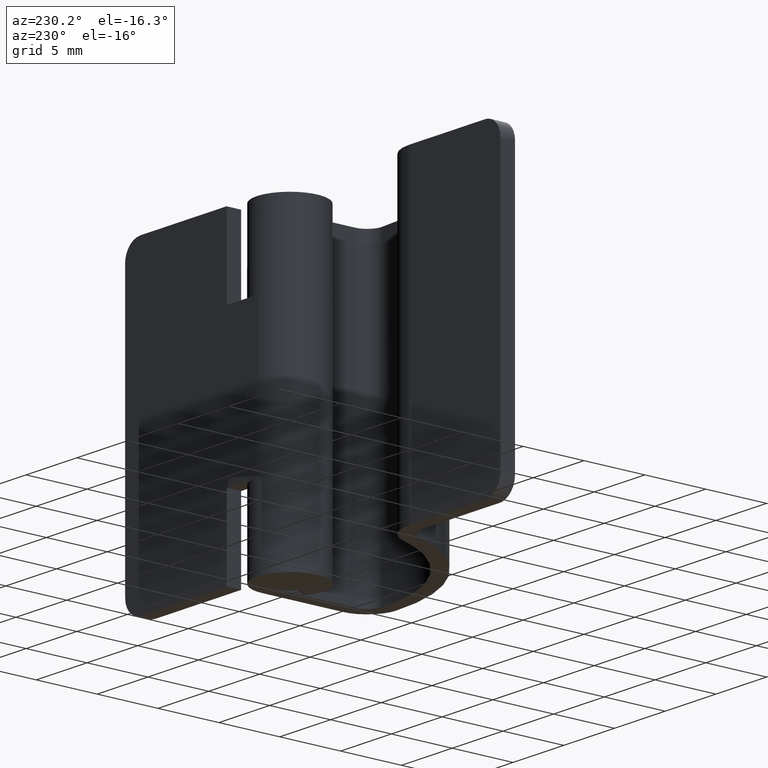
[diagram: clean part render]
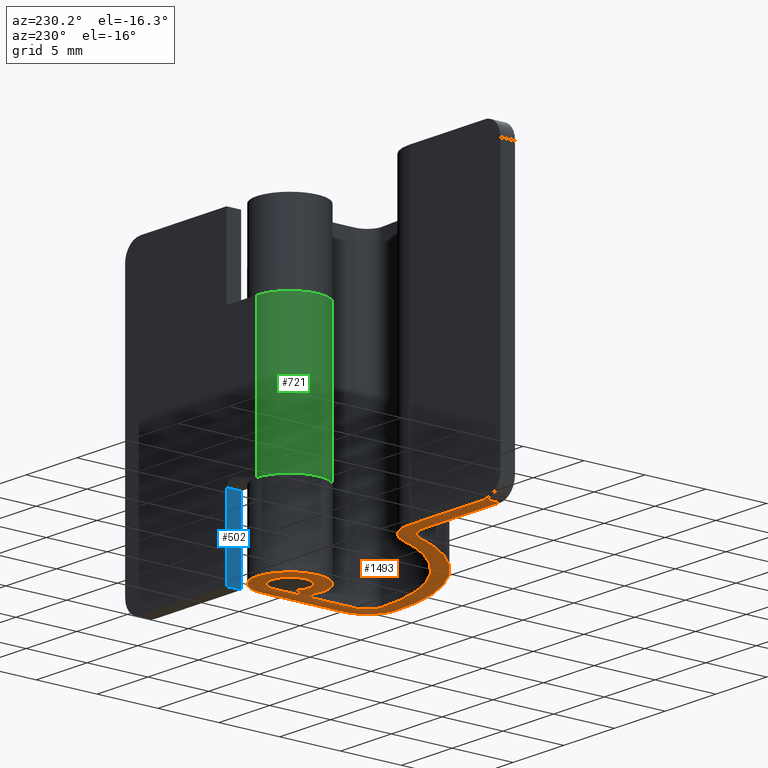
[diagram: same view with three faces highlighted in distinct colors, each labeled with its STEP entity id]
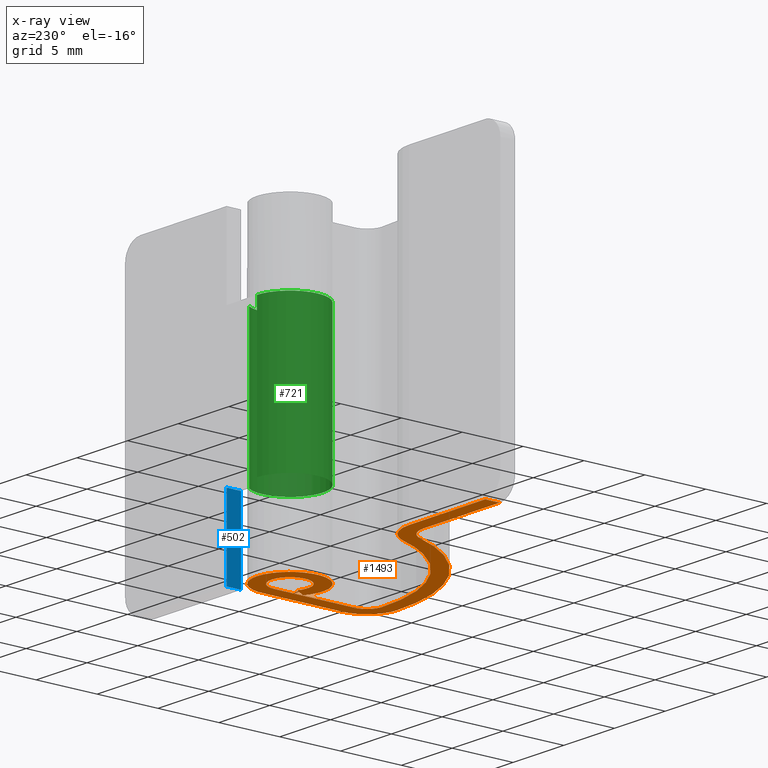
[diagram: x-ray of the same camera — body ghosted, the three highlighted faces saturated]
A machine part, auxiliary view with three faces highlighted in distinct colors.
The next image is the same camera in x-ray (body ghosted, the three faces saturated) — at least one of them is partly hidden behind the body in this view.
Their STEP definitions:

[orange] entity #1493 — the highlighted face is a freeform B-spline surface patch.
#1099=CARTESIAN_POINT('',(-22.500000000000000,2.700001000000000,0.0));
#1100=VERTEX_POINT('',#1099);
#1116=CARTESIAN_POINT('',(-22.500000000000000,1.500000000000000,0.0));
#1117=VERTEX_POINT('',#1116);
#1118=CARTESIAN_POINT('',(-22.500000000000000,1.500000000000000,0.0));
#1119=CARTESIAN_POINT('',(-22.500000000000000,2.700001000000000,0.0));
#1120=QUASI_UNIFORM_CURVE('',1,(#1118,#1119),.UNSPECIFIED.,.F.,.U.);
#1121=EDGE_CURVE('',#1117,#1100,#1120,.T.);
#1320=CARTESIAN_POINT('',(-23.758739801307520,-9.584245855165301,0.0));
#1321=CARTESIAN_POINT('',(3.958737477224223,-9.584245855165301,0.0));
#1322=CARTESIAN_POINT('',(-23.758739801307520,3.284408292945508,0.0));
#1323=CARTESIAN_POINT('',(3.958737477224223,3.284408292945508,0.0));
#1324=B_SPLINE_SURFACE_WITH_KNOTS('',1,1,((#1320,#1322),(#1321,#1323)),.UNSPECIFIED.,.F.,.F.,.U.,(2,2),(2,2),(0.0,27.717477278531739),(0.0,12.868654148110810),.UNSPECIFIED.);
#1325=CARTESIAN_POINT('',(-15.000003389367050,1.500000000000000,0.0));
#1326=VERTEX_POINT('',#1325);
#1327=CARTESIAN_POINT('',(-22.500000000000000,1.500000000000000,0.0));
#1328=CARTESIAN_POINT('',(-15.000003389367050,1.500000000000000,0.0));
#1329=QUASI_UNIFORM_CURVE('',1,(#1327,#1328),.UNSPECIFIED.,.F.,.U.);
#1330=EDGE_CURVE('',#1117,#1326,#1329,.T.);
#1331=ORIENTED_EDGE('',*,*,#1330,.F.);
#1332=ORIENTED_EDGE('',*,*,#1121,.T.);
#1333=CARTESIAN_POINT('',(-15.000003765196301,2.700001000000000,0.0));
#1334=VERTEX_POINT('',#1333);
#1335=CARTESIAN_POINT('',(-15.000003765196301,2.700001000000000,0.0));
#1336=CARTESIAN_POINT('',(-22.500000000000000,2.700001000000000,0.0));
#1337=QUASI_UNIFORM_CURVE('',1,(#1335,#1336),.UNSPECIFIED.,.F.,.U.);
#1338=EDGE_CURVE('',#1334,#1100,#1337,.T.);
#1339=ORIENTED_EDGE('',*,*,#1338,.F.);
#1340=CARTESIAN_POINT('',(-12.004567762194521,0.625773246913583,0.0));
#1341=VERTEX_POINT('',#1340);
#1342=CARTESIAN_POINT('',(-15.000003765196301,2.700001000000000,0.0));
#1343=CARTESIAN_POINT('',(-12.784123070958465,2.700000999999999,0.0));
#1344=CARTESIAN_POINT('',(-12.004567762194540,0.625773246913576,0.0));
#1352=(BOUNDED_CURVE()B_SPLINE_CURVE(2,(#1342,#1343,#1344),.UNSPECIFIED.,.F.,.U.)CURVE()GEOMETRIC_REPRESENTATION_ITEM()QUASI_UNIFORM_CURVE()RATIONAL_B_SPLINE_CURVE((1.0,0.822132540154108,1.0))REPRESENTATION_ITEM(''));
#1353=EDGE_CURVE('',#1334,#1341,#1352,.T.);
#1354=ORIENTED_EDGE('',*,*,#1353,.T.);
#1355=CARTESIAN_POINT('',(0.313790745762814,-7.799918499190090,0.0));
#1356=VERTEX_POINT('',#1355);
#1357=CARTESIAN_POINT('',(0.313790745762814,-7.799918499190093,0.0));
#1358=CARTESIAN_POINT('',(-8.798586762132912,-7.904647483258636,0.0));
#1359=CARTESIAN_POINT('',(-12.004567762194529,0.625773246913579,0.0));
#1367=(BOUNDED_CURVE()B_SPLINE_CURVE(2,(#1357,#1358,#1359),.UNSPECIFIED.,.F.,.U.)CURVE()GEOMETRIC_REPRESENTATION_ITEM()QUASI_UNIFORM_CURVE()RATIONAL_B_SPLINE_CURVE((1.0,0.818847655334349,1.0))REPRESENTATION_ITEM(''));
#1368=EDGE_CURVE('',#1356,#1341,#1367,.T.);
#1369=ORIENTED_EDGE('',*,*,#1368,.F.);
#1370=CARTESIAN_POINT('',(1.500000000000100,-6.599998000000000,0.0));
#1371=VERTEX_POINT('',#1370);
#1372=CARTESIAN_POINT('',(1.500000000000100,-6.599998000000000,0.0));
#1373=CARTESIAN_POINT('',(1.499999748327927,-7.786285343230083,0.0));
#1374=CARTESIAN_POINT('',(0.313790745762814,-7.799918499190094,0.0));
#1382=(BOUNDED_CURVE()B_SPLINE_CURVE(2,(#1372,#1373,#1374),.UNSPECIFIED.,.F.,.U.)CURVE()GEOMETRIC_REPRESENTATION_ITEM()QUASI_UNIFORM_CURVE()RATIONAL_B_SPLINE_CURVE((1.0,0.711158386111234,1.0))REPRESENTATION_ITEM(''));
#1383=EDGE_CURVE('',#1371,#1356,#1382,.T.);
#1384=ORIENTED_EDGE('',*,*,#1383,.F.);
#1385=CARTESIAN_POINT('',(1.500000000000000,3.673819E-016,0.0));
#1386=VERTEX_POINT('',#1385);
#1387=CARTESIAN_POINT('',(1.500000000000000,3.673819E-016,0.0));
#1388=CARTESIAN_POINT('',(1.500000000000100,-6.599998000000000,0.0));
#1389=QUASI_UNIFORM_CURVE('',1,(#1387,#1388),.UNSPECIFIED.,.F.,.U.);
#1390=EDGE_CURVE('',#1386,#1371,#1389,.T.);
#1391=ORIENTED_EDGE('',*,*,#1390,.F.);
#1392=CARTESIAN_POINT('',(0.805555555555611,-1.265337997103340,0.0));
#1393=VERTEX_POINT('',#1392);
#1394=CARTESIAN_POINT('',(0.805555555555611,-1.265337997103339,0.0));
#1395=CARTESIAN_POINT('',(-0.176304541715746,-1.890422249647697,0.0));
#1396=CARTESIAN_POINT('',(-1.025644030195455,-1.094556678899921,0.0));
#1397=CARTESIAN_POINT('',(-1.874983518675165,-0.298691108152145,0.0));
#1398=CARTESIAN_POINT('',(-1.314977819838308,0.721687836487003,0.0));
#1399=CARTESIAN_POINT('',(-0.754972121001450,1.742066781126151,0.0));
#1400=CARTESIAN_POINT('',(0.372513939499275,1.453008384311230,0.0));
#1401=CARTESIAN_POINT('',(1.500000000000001,1.163949987496309,0.0));
#1402=CARTESIAN_POINT('',(1.500000000000000,0.0,0.0));
#1410=(BOUNDED_CURVE()B_SPLINE_CURVE(2,(#1394,#1395,#1396,#1397,#1398,#1399,#1400,#1401,#1402),.UNSPECIFIED.,.F.,.U.)B_SPLINE_CURVE_WITH_KNOTS((3,2,2,2,3),(0.0,0.250000000000000,0.500000000000000,0.750000000000000,1.0),.UNSPECIFIED.)CURVE()GEOMETRIC_REPRESENTATION_ITEM()RATIONAL_B_SPLINE_CURVE((1.0,0.790045133626190,1.0,0.790045133626190,1.0,0.790045133626190,1.0,0.790045133626190,1.0))REPRESENTATION_ITEM(''));
#1411=EDGE_CURVE('',#1393,#1386,#1410,.T.);
#1412=ORIENTED_EDGE('',*,*,#1411,.F.);
#1413=CARTESIAN_POINT('',(1.450000000000098,-2.277608394786015,0.0));
#1414=VERTEX_POINT('',#1413);
#1415=CARTESIAN_POINT('',(1.450000000000098,-2.277608394786015,0.0));
#1416=CARTESIAN_POINT('',(0.805555555555611,-1.265337997103340,0.0));
#1417=QUASI_UNIFORM_CURVE('',1,(#1415,#1416),.UNSPECIFIED.,.F.,.U.);
#1418=EDGE_CURVE('',#1414,#1393,#1417,.T.);
#1419=ORIENTED_EDGE('',*,*,#1418,.F.);
#1420=CARTESIAN_POINT('',(2.699997000000110,0.004024921167900,0.0));
#1421=VERTEX_POINT('',#1420);
#1422=CARTESIAN_POINT('',(1.450000000000096,-2.277608394786014,0.0));
#1423=CARTESIAN_POINT('',(-0.316668320156679,-3.402327231479697,0.0));
#1424=CARTESIAN_POINT('',(-1.845424875166958,-1.970889908167125,0.0));
#1425=CARTESIAN_POINT('',(-3.374181430177236,-0.539452584854552,0.0));
#1426=CARTESIAN_POINT('',(-2.367927664038830,1.297273516988461,0.0));
#1427=CARTESIAN_POINT('',(-1.361673897900424,3.133999618831474,0.0));
#1428=CARTESIAN_POINT('',(0.667600549445105,2.616163126867397,0.0));
#1429=CARTESIAN_POINT('',(2.696874996790632,2.098326634903320,0.0));
#1430=CARTESIAN_POINT('',(2.699997000000110,0.004024921167900,0.0));
#1438=(BOUNDED_CURVE()B_SPLINE_CURVE(2,(#1422,#1423,#1424,#1425,#1426,#1427,#1428,#1429,#1430),.UNSPECIFIED.,.F.,.U.)B_SPLINE_CURVE_WITH_KNOTS((3,2,2,2,3),(0.0,0.250000000000000,0.500000000000000,0.750000000000000,1.0),.UNSPECIFIED.)CURVE()GEOMETRIC_REPRESENTATION_ITEM()RATIONAL_B_SPLINE_CURVE((1.0,0.790159354795212,1.0,0.790159354795212,1.0,0.790159354795212,1.0,0.790159354795212,1.0))REPRESENTATION_ITEM(''));
#1439=EDGE_CURVE('',#1414,#1421,#1438,.T.);
#1440=ORIENTED_EDGE('',*,*,#1439,.T.);
#1441=CARTESIAN_POINT('',(2.699997000000110,-6.599997779897450,0.0));
#1442=VERTEX_POINT('',#1441);
#1443=CARTESIAN_POINT('',(2.699997000000110,-6.599997779897450,0.0));
#1444=CARTESIAN_POINT('',(2.699997000000110,0.004024921167900,0.0));
#1445=QUASI_UNIFORM_CURVE('',1,(#1443,#1444),.UNSPECIFIED.,.F.,.U.);
#1446=EDGE_CURVE('',#1442,#1421,#1445,.T.);
#1447=ORIENTED_EDGE('',*,*,#1446,.F.);
#1448=CARTESIAN_POINT('',(0.327577881356044,-8.999839294452860,0.0));
#1449=VERTEX_POINT('',#1448);
#1450=CARTESIAN_POINT('',(2.699997000000110,-6.599997779897450,0.0));
#1451=CARTESIAN_POINT('',(2.699997000000110,-8.972573573012092,0.0));
#1452=CARTESIAN_POINT('',(0.327577881356045,-8.999839294452865,0.0));
#1460=(BOUNDED_CURVE()B_SPLINE_CURVE(2,(#1450,#1451,#1452),.UNSPECIFIED.,.F.,.U.)CURVE()GEOMETRIC_REPRESENTATION_ITEM()QUASI_UNIFORM_CURVE()RATIONAL_B_SPLINE_CURVE((1.0,0.711158222162377,1.0))REPRESENTATION_ITEM(''));
#1461=EDGE_CURVE('',#1442,#1449,#1460,.T.);
#1462=ORIENTED_EDGE('',*,*,#1461,.T.);
#1463=CARTESIAN_POINT('',(-13.127855933889640,0.203607777777776,0.0));
#1464=VERTEX_POINT('',#1463);
#1465=CARTESIAN_POINT('',(0.327577881356048,-8.999839294452874,0.0));
#1466=CARTESIAN_POINT('',(-9.625938804484882,-9.114232999671085,0.0));
#1467=CARTESIAN_POINT('',(-13.127855933889650,0.203607777777775,0.0));
#1475=(BOUNDED_CURVE()B_SPLINE_CURVE(2,(#1465,#1466,#1467),.UNSPECIFIED.,.F.,.U.)CURVE()GEOMETRIC_REPRESENTATION_ITEM()QUASI_UNIFORM_CURVE()RATIONAL_B_SPLINE_CURVE((1.0,0.818847747232917,1.0))REPRESENTATION_ITEM(''));
#1476=EDGE_CURVE('',#1449,#1464,#1475,.T.);
#1477=ORIENTED_EDGE('',*,*,#1476,.T.);
#1478=CARTESIAN_POINT('',(-15.000003389367050,1.500000000000000,0.0));
#1479=CARTESIAN_POINT('',(-13.615078053032773,1.500000000000000,0.0));
#1480=CARTESIAN_POINT('',(-13.127855933889620,0.203607777777783,0.0));
#1488=(BOUNDED_CURVE()B_SPLINE_CURVE(2,(#1478,#1479,#1480),.UNSPECIFIED.,.F.,.U.)CURVE()GEOMETRIC_REPRESENTATION_ITEM()QUASI_UNIFORM_CURVE()RATIONAL_B_SPLINE_CURVE((1.0,0.822132558924925,1.0))REPRESENTATION_ITEM(''));
#1489=EDGE_CURVE('',#1326,#1464,#1488,.T.);
#1490=ORIENTED_EDGE('',*,*,#1489,.F.);
#1491=EDGE_LOOP('',(#1331,#1332,#1339,#1354,#1369,#1384,#1391,#1412,#1419,#1440,#1447,#1462,#1477,#1490));
#1492=FACE_OUTER_BOUND('',#1491,.T.);
#1493=ADVANCED_FACE('',(#1492),#1324,.F.);

[blue] entity #502 — the highlighted face is a freeform B-spline surface patch.
#425=CARTESIAN_POINT('',(3.0,2.700001000000000,6.500000000000000));
#426=VERTEX_POINT('',#425);
#432=CARTESIAN_POINT('',(3.0,1.500000000000000,6.500000000000000));
#433=VERTEX_POINT('',#432);
#434=CARTESIAN_POINT('',(3.0,2.700001000000000,6.500000000000000));
#435=CARTESIAN_POINT('',(3.0,1.500000000000000,6.500000000000000));
#436=QUASI_UNIFORM_CURVE('',1,(#434,#435),.UNSPECIFIED.,.F.,.U.);
#437=EDGE_CURVE('',#426,#433,#436,.T.);
#475=CARTESIAN_POINT('',(3.0,1.440059952375834,-0.324674987401739));
#476=CARTESIAN_POINT('',(3.0,1.440059952375834,6.824675161745327));
#477=CARTESIAN_POINT('',(3.0,2.759941079810700,-0.324674987401739));
#478=CARTESIAN_POINT('',(3.0,2.759941079810700,6.824675161745327));
#479=B_SPLINE_SURFACE_WITH_KNOTS('',1,1,((#475,#477),(#476,#478)),.UNSPECIFIED.,.F.,.F.,.U.,(2,2),(2,2),(0.0,7.149350149147066),(0.041708334948495,0.958291687403247),.UNSPECIFIED.);
#480=ORIENTED_EDGE('',*,*,#437,.F.);
#481=CARTESIAN_POINT('',(3.0,2.700001000000000,0.0));
#482=VERTEX_POINT('',#481);
#483=CARTESIAN_POINT('',(3.0,2.700001000000000,0.0));
#484=CARTESIAN_POINT('',(3.0,2.700001000000000,6.500000000000000));
#485=QUASI_UNIFORM_CURVE('',1,(#483,#484),.UNSPECIFIED.,.F.,.U.);
#486=EDGE_CURVE('',#482,#426,#485,.T.);
#487=ORIENTED_EDGE('',*,*,#486,.F.);
#488=CARTESIAN_POINT('',(3.0,1.500000000000000,0.0));
#489=VERTEX_POINT('',#488);
#490=CARTESIAN_POINT('',(3.0,2.700001000000000,0.0));
#491=CARTESIAN_POINT('',(3.0,1.500000000000000,0.0));
#492=QUASI_UNIFORM_CURVE('',1,(#490,#491),.UNSPECIFIED.,.F.,.U.);
#493=EDGE_CURVE('',#482,#489,#492,.T.);
#494=ORIENTED_EDGE('',*,*,#493,.T.);
#495=CARTESIAN_POINT('',(3.0,1.500000000000000,0.0));
#496=CARTESIAN_POINT('',(3.0,1.500000000000000,6.500000000000000));
#497=QUASI_UNIFORM_CURVE('',1,(#495,#496),.UNSPECIFIED.,.F.,.U.);
#498=EDGE_CURVE('',#489,#433,#497,.T.);
#499=ORIENTED_EDGE('',*,*,#498,.T.);
#500=EDGE_LOOP('',(#480,#487,#494,#499));
#501=FACE_OUTER_BOUND('',#500,.T.);
#502=ADVANCED_FACE('',(#501),#479,.T.);

[green] entity #721 — the highlighted face is a freeform B-spline surface patch.
#333=CARTESIAN_POINT('',(-4.959658E-016,2.700001000000000,18.500006999999950));
#334=VERTEX_POINT('',#333);
#340=CARTESIAN_POINT('',(2.277609238344740,1.450000537037038,18.500006999999950));
#341=VERTEX_POINT('',#340);
#342=CARTESIAN_POINT('',(2.277609238344739,1.450000537037038,18.500006999999950));
#343=CARTESIAN_POINT('',(3.402761309647328,-0.317348292624832,18.500006999999957));
#344=CARTESIAN_POINT('',(1.970202751724250,-1.846159938114571,18.500006999999950));
#345=CARTESIAN_POINT('',(0.537644193801172,-3.374971583604309,18.500006999999957));
#346=CARTESIAN_POINT('',(-1.299038586801881,-2.366960952360806,18.500006999999950));
#347=CARTESIAN_POINT('',(-3.135721367404934,-1.358950321117303,18.500006999999957));
#348=CARTESIAN_POINT('',(-2.615416060432463,0.670525339441348,18.500006999999950));
#349=CARTESIAN_POINT('',(-2.095110753459992,2.700001000000000,18.500006999999957));
#350=CARTESIAN_POINT('',(0.0,2.700001000000000,18.500006999999950));
#358=(BOUNDED_CURVE()B_SPLINE_CURVE(2,(#342,#343,#344,#345,#346,#347,#348,#349,#350),.UNSPECIFIED.,.F.,.U.)B_SPLINE_CURVE_WITH_KNOTS((3,2,2,2,3),(0.0,0.250000000000000,0.500000000000000,0.750000000000000,1.0),.UNSPECIFIED.)CURVE()GEOMETRIC_REPRESENTATION_ITEM()RATIONAL_B_SPLINE_CURVE((1.0,0.790045133626193,1.0,0.790045133626193,1.0,0.790045133626193,1.0,0.790045133626193,1.0))REPRESENTATION_ITEM(''));
#359=EDGE_CURVE('',#341,#334,#358,.T.);
#402=CARTESIAN_POINT('',(2.277609238344740,1.450000537037038,6.500000000000000));
#403=VERTEX_POINT('',#402);
#404=CARTESIAN_POINT('',(-4.959658E-016,2.700001000000000,6.500000000000000));
#405=VERTEX_POINT('',#404);
#406=CARTESIAN_POINT('',(2.277609238344739,1.450000537037038,6.500000000000000));
#407=CARTESIAN_POINT('',(3.402761309647328,-0.317348292624832,6.499999999999999));
#408=CARTESIAN_POINT('',(1.970202751724250,-1.846159938114571,6.500000000000000));
#409=CARTESIAN_POINT('',(0.537644193801172,-3.374971583604309,6.499999999999999));
#410=CARTESIAN_POINT('',(-1.299038586801881,-2.366960952360806,6.500000000000000));
#411=CARTESIAN_POINT('',(-3.135721367404934,-1.358950321117303,6.499999999999999));
#412=CARTESIAN_POINT('',(-2.615416060432463,0.670525339441348,6.500000000000000));
#413=CARTESIAN_POINT('',(-2.095110753459992,2.700001000000000,6.499999999999999));
#414=CARTESIAN_POINT('',(0.0,2.700001000000000,6.500000000000000));
#422=(BOUNDED_CURVE()B_SPLINE_CURVE(2,(#406,#407,#408,#409,#410,#411,#412,#413,#414),.UNSPECIFIED.,.F.,.U.)B_SPLINE_CURVE_WITH_KNOTS((3,2,2,2,3),(0.0,0.250000000000000,0.500000000000000,0.750000000000000,1.0),.UNSPECIFIED.)CURVE()GEOMETRIC_REPRESENTATION_ITEM()RATIONAL_B_SPLINE_CURVE((1.0,0.790045133626193,1.0,0.790045133626193,1.0,0.790045133626193,1.0,0.790045133626193,1.0))REPRESENTATION_ITEM(''));
#423=EDGE_CURVE('',#403,#405,#422,.T.);
#685=CARTESIAN_POINT('',(2.238872169438908,1.509124517365254,6.199999825000000));
#686=CARTESIAN_POINT('',(2.238872169438908,1.509124517365254,18.807507179374952));
#687=CARTESIAN_POINT('',(4.113610018910586,-1.272155852728961,6.199999825000001));
#688=CARTESIAN_POINT('',(4.113610018910586,-1.272155852728961,18.807507179374955));
#689=CARTESIAN_POINT('',(0.996075799854384,-2.509549441821269,6.199999825000000));
#690=CARTESIAN_POINT('',(0.996075799854384,-2.509549441821269,18.807507179374952));
#691=CARTESIAN_POINT('',(-2.121458419201816,-3.746943030913576,6.199999825000001));
#692=CARTESIAN_POINT('',(-2.121458419201816,-3.746943030913576,18.807507179374955));
#693=CARTESIAN_POINT('',(-2.664393305302935,-0.437051157941370,6.199999825000000));
#694=CARTESIAN_POINT('',(-2.664393305302935,-0.437051157941370,18.807507179374952));
#695=CARTESIAN_POINT('',(-3.207328191404054,2.872840715030836,6.199999825000001));
#696=CARTESIAN_POINT('',(-3.207328191404054,2.872840715030836,18.807507179374955));
#697=CARTESIAN_POINT('',(0.142146477834481,2.696256623328025,6.199999825000000));
#698=CARTESIAN_POINT('',(0.142146477834481,2.696256623328025,18.807507179374952));
#706=(BOUNDED_SURFACE()B_SPLINE_SURFACE(1,2,((#685,#687,#689,#691,#693,#695,#697),(#686,#688,#690,#692,#694,#696,#698)),.UNSPECIFIED.,.F.,.F.,.U.)B_SPLINE_SURFACE_WITH_KNOTS((2,2),(3,2,2,3),(0.0,12.607507354374951),(0.0,5.170632681176847,10.341265362353690,15.511898043530540),.UNSPECIFIED.)GEOMETRIC_REPRESENTATION_ITEM()RATIONAL_B_SPLINE_SURFACE(((1.0,0.627057105746662,1.0,0.627057105746662,1.0,0.627057105746662,1.0),(1.0,0.627057105746662,1.0,0.627057105746662,1.0,0.627057105746662,1.0)))REPRESENTATION_ITEM('')SURFACE());
#707=ORIENTED_EDGE('',*,*,#359,.T.);
#708=CARTESIAN_POINT('',(-4.959658E-016,2.700001000000000,6.500000000000000));
#709=CARTESIAN_POINT('',(-4.959658E-016,2.700001000000000,18.500006999999950));
#710=QUASI_UNIFORM_CURVE('',1,(#708,#709),.UNSPECIFIED.,.F.,.U.);
#711=EDGE_CURVE('',#405,#334,#710,.T.);
#712=ORIENTED_EDGE('',*,*,#711,.F.);
#713=ORIENTED_EDGE('',*,*,#423,.F.);
#714=CARTESIAN_POINT('',(2.277609238344740,1.450000537037038,6.500000000000000));
#715=CARTESIAN_POINT('',(2.277609238344740,1.450000537037038,18.500006999999950));
#716=QUASI_UNIFORM_CURVE('',1,(#714,#715),.UNSPECIFIED.,.F.,.U.);
#717=EDGE_CURVE('',#403,#341,#716,.T.);
#718=ORIENTED_EDGE('',*,*,#717,.T.);
#719=EDGE_LOOP('',(#707,#712,#713,#718));
#720=FACE_OUTER_BOUND('',#719,.T.);
#721=ADVANCED_FACE('',(#720),#706,.T.);